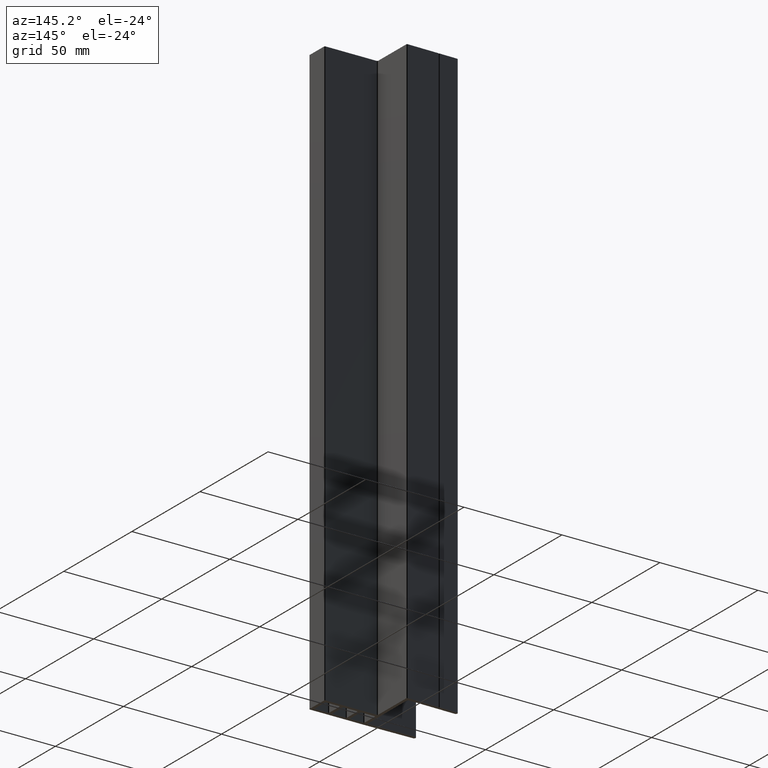
[diagram: clean part render]
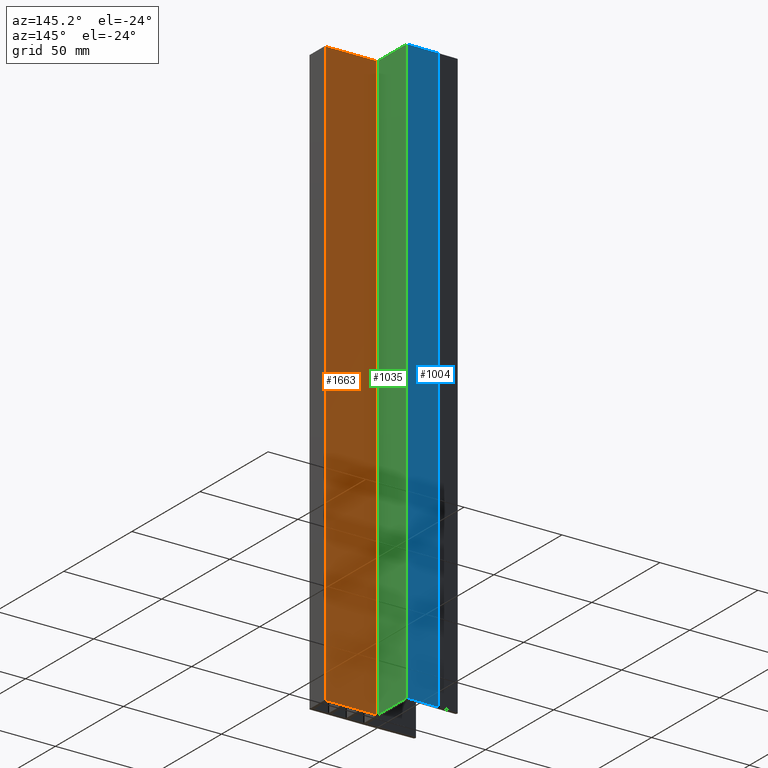
[diagram: same view with three faces highlighted in distinct colors, each labeled with its STEP entity id]
A machine part, auxiliary view with three faces highlighted in distinct colors.
Their STEP definitions:

[orange] entity #1663 — the highlighted planar face has unit normal (0, -1, 0).
#368 = EDGE_CURVE ( 'NONE', #1259, #1438, #1118, .T. ) ;
#387 = EDGE_CURVE ( 'NONE', #1009, #1438, #1652, .T. ) ;
#436 = LINE ( 'NONE', #1052, #1475 ) ;
#487 = VECTOR ( 'NONE', #1154, 1000.000000000000000 ) ;
#623 = EDGE_LOOP ( 'NONE', ( #1577, #1032, #1169, #1190 ) ) ;
#792 = CARTESIAN_POINT ( 'NONE',  ( 28.10000000000000100, -5.000000000000000000, 150.0000000000000000 ) ) ;
#855 = FACE_OUTER_BOUND ( 'NONE', #623, .T. ) ;
#920 = DIRECTION ( 'NONE',  ( 1.000000000000000000, 1.000802005371235000E-016, 0.0000000000000000000 ) ) ;
#922 = DIRECTION ( 'NONE',  ( 1.000802005371235000E-016, -1.000000000000000000, 0.0000000000000000000 ) ) ;
#925 = PLANE ( 'NONE',  #1691 ) ;
#940 = CARTESIAN_POINT ( 'NONE',  ( 28.10000000000000100, -5.000000000000000000, 150.0000000000000000 ) ) ;
#1009 = VERTEX_POINT ( 'NONE', #1794 ) ;
#1031 = DIRECTION ( 'NONE',  ( -0.0000000000000000000, -0.0000000000000000000, -1.000000000000000000 ) ) ;
#1032 = ORIENTED_EDGE ( 'NONE', *, *, #368, .F. ) ;
#1052 = CARTESIAN_POINT ( 'NONE',  ( 28.10000000000000100, -5.000000000000000000, 150.0000000000000000 ) ) ;
#1118 = LINE ( 'NONE', #1804, #1428 ) ;
#1154 = DIRECTION ( 'NONE',  ( -1.000000000000000000, -1.000802005371235100E-016, 0.0000000000000000000 ) ) ;
#1160 = CARTESIAN_POINT ( 'NONE',  ( 28.10000000000000100, -5.000000000000000000, 150.0000000000000000 ) ) ;
#1169 = ORIENTED_EDGE ( 'NONE', *, *, #1452, .F. ) ;
#1190 = ORIENTED_EDGE ( 'NONE', *, *, #1567, .T. ) ;
#1204 = CARTESIAN_POINT ( 'NONE',  ( 2.100000000000000100, -5.000000000000002700, -150.0000000000000000 ) ) ;
#1212 = LINE ( 'NONE', #1160, #487 ) ;
#1259 = VERTEX_POINT ( 'NONE', #1392 ) ;
#1392 = CARTESIAN_POINT ( 'NONE',  ( 2.100000000000000100, -5.000000000000002700, 150.0000000000000000 ) ) ;
#1428 = VECTOR ( 'NONE', #1828, 1000.000000000000000 ) ;
#1438 = VERTEX_POINT ( 'NONE', #1204 ) ;
#1452 = EDGE_CURVE ( 'NONE', #1806, #1259, #1212, .T. ) ;
#1475 = VECTOR ( 'NONE', #1031, 1000.000000000000000 ) ;
#1567 = EDGE_CURVE ( 'NONE', #1806, #1009, #436, .T. ) ;
#1577 = ORIENTED_EDGE ( 'NONE', *, *, #387, .T. ) ;
#1606 = CARTESIAN_POINT ( 'NONE',  ( 28.10000000000000100, -5.000000000000000000, -150.0000000000000000 ) ) ;
#1612 = DIRECTION ( 'NONE',  ( -1.000000000000000000, -1.000802005371235100E-016, 0.0000000000000000000 ) ) ;
#1652 = LINE ( 'NONE', #1606, #1696 ) ;
#1663 = ADVANCED_FACE ( 'NONE', ( #855 ), #925, .F. ) ;
#1691 = AXIS2_PLACEMENT_3D ( 'NONE', #940, #922, #920 ) ;
#1696 = VECTOR ( 'NONE', #1612, 1000.000000000000000 ) ;
#1794 = CARTESIAN_POINT ( 'NONE',  ( 28.10000000000000100, -5.000000000000000000, -150.0000000000000000 ) ) ;
#1804 = CARTESIAN_POINT ( 'NONE',  ( 2.100000000000000100, -5.000000000000002700, 150.0000000000000000 ) ) ;
#1806 = VERTEX_POINT ( 'NONE', #792 ) ;
#1828 = DIRECTION ( 'NONE',  ( -0.0000000000000000000, -0.0000000000000000000, -1.000000000000000000 ) ) ;

[blue] entity #1004 — the highlighted planar face has unit normal (0.016, -0.9999, 0).
#21 = LINE ( 'NONE', #1891, #999 ) ;
#39 = LINE ( 'NONE', #1571, #1036 ) ;
#105 = VERTEX_POINT ( 'NONE', #116 ) ;
#116 = CARTESIAN_POINT ( 'NONE',  ( -14.78087924239068400, 16.26391553212179300, -150.0000000000000000 ) ) ;
#156 = VECTOR ( 'NONE', #1405, 1000.000000000000100 ) ;
#209 = FACE_OUTER_BOUND ( 'NONE', #1777, .T. ) ;
#256 = CARTESIAN_POINT ( 'NONE',  ( 1.092001023803433900, 16.51788161638096900, 150.0000000000000000 ) ) ;
#279 = LINE ( 'NONE', #1753, #1368 ) ;
#291 = VERTEX_POINT ( 'NONE', #1188 ) ;
#417 = EDGE_CURVE ( 'NONE', #1505, #105, #1639, .T. ) ;
#540 = ORIENTED_EDGE ( 'NONE', *, *, #1130, .T. ) ;
#620 = ORIENTED_EDGE ( 'NONE', *, *, #417, .T. ) ;
#771 = ORIENTED_EDGE ( 'NONE', *, *, #884, .F. ) ;
#800 = AXIS2_PLACEMENT_3D ( 'NONE', #1780, #1767, #1765 ) ;
#803 = VERTEX_POINT ( 'NONE', #256 ) ;
#884 = EDGE_CURVE ( 'NONE', #803, #291, #21, .T. ) ;
#999 = VECTOR ( 'NONE', #1892, 1000.000000000000100 ) ;
#1004 = ADVANCED_FACE ( 'NONE', ( #209 ), #1787, .F. ) ;
#1011 = EDGE_CURVE ( 'NONE', #803, #1505, #279, .T. ) ;
#1036 = VECTOR ( 'NONE', #1580, 1000.000000000000000 ) ;
#1130 = EDGE_CURVE ( 'NONE', #105, #291, #39, .T. ) ;
#1142 = CARTESIAN_POINT ( 'NONE',  ( 1.092001023803433900, 16.51788161638096900, -150.0000000000000000 ) ) ;
#1188 = CARTESIAN_POINT ( 'NONE',  ( -14.78087924239068100, 16.26391553212179300, 150.0000000000000000 ) ) ;
#1368 = VECTOR ( 'NONE', #1761, 1000.000000000000000 ) ;
#1405 = DIRECTION ( 'NONE',  ( -0.9998720245707581900, -0.01599795239313673100, 0.0000000000000000000 ) ) ;
#1421 = CARTESIAN_POINT ( 'NONE',  ( 1.092001023803433900, 16.51788161638096900, -150.0000000000000000 ) ) ;
#1440 = ORIENTED_EDGE ( 'NONE', *, *, #1011, .T. ) ;
#1505 = VERTEX_POINT ( 'NONE', #1142 ) ;
#1571 = CARTESIAN_POINT ( 'NONE',  ( -14.78087924239068100, 16.26391553212179300, -150.0009999999999800 ) ) ;
#1580 = DIRECTION ( 'NONE',  ( -0.0000000000000000000, -0.0000000000000000000, 1.000000000000000000 ) ) ;
#1639 = LINE ( 'NONE', #1421, #156 ) ;
#1753 = CARTESIAN_POINT ( 'NONE',  ( 1.092001023803433900, 16.51788161638096900, 150.0000000000000000 ) ) ;
#1761 = DIRECTION ( 'NONE',  ( -0.0000000000000000000, -0.0000000000000000000, -1.000000000000000000 ) ) ;
#1765 = DIRECTION ( 'NONE',  ( 0.9998720245707583000, 0.01599795239313673400, 0.0000000000000000000 ) ) ;
#1767 = DIRECTION ( 'NONE',  ( 0.01599795239313673400, -0.9998720245707583000, 0.0000000000000000000 ) ) ;
#1777 = EDGE_LOOP ( 'NONE', ( #620, #540, #771, #1440 ) ) ;
#1780 = CARTESIAN_POINT ( 'NONE',  ( 1.092001023803433900, 16.51788161638096900, 150.0000000000000000 ) ) ;
#1787 = PLANE ( 'NONE',  #800 ) ;
#1891 = CARTESIAN_POINT ( 'NONE',  ( 1.092001023803433900, 16.51788161638096900, 150.0000000000000000 ) ) ;
#1892 = DIRECTION ( 'NONE',  ( -0.9998720245707581900, -0.01599795239313673100, 0.0000000000000000000 ) ) ;

[green] entity #1035 — the highlighted planar face has unit normal (-1, 0, 0).
#60 = VECTOR ( 'NONE', #879, 1000.000000000000000 ) ;
#78 = EDGE_CURVE ( 'NONE', #1065, #654, #1045, .T. ) ;
#267 = VECTOR ( 'NONE', #872, 1000.000000000000000 ) ;
#337 = CARTESIAN_POINT ( 'NONE',  ( 1.599999999999999000, 16.01794560409558700, 150.0000000000000000 ) ) ;
#513 = CARTESIAN_POINT ( 'NONE',  ( 1.599999999999999000, 16.01794560409558700, -150.0000000000000000 ) ) ;
#516 = FACE_OUTER_BOUND ( 'NONE', #938, .T. ) ;
#604 = VERTEX_POINT ( 'NONE', #513 ) ;
#654 = VERTEX_POINT ( 'NONE', #337 ) ;
#751 = LINE ( 'NONE', #1450, #1221 ) ;
#770 = ORIENTED_EDGE ( 'NONE', *, *, #958, .F. ) ;
#872 = DIRECTION ( 'NONE',  ( 0.0000000000000000000, 1.000000000000000000, 0.0000000000000000000 ) ) ;
#879 = DIRECTION ( 'NONE',  ( 0.0000000000000000000, 1.000000000000000000, 0.0000000000000000000 ) ) ;
#903 = CARTESIAN_POINT ( 'NONE',  ( 1.600000000000000100, -4.500000000000003600, -150.0000000000000000 ) ) ;
#938 = EDGE_LOOP ( 'NONE', ( #1846, #770, #1018, #1397 ) ) ;
#958 = EDGE_CURVE ( 'NONE', #654, #604, #1120, .T. ) ;
#1018 = ORIENTED_EDGE ( 'NONE', *, *, #78, .F. ) ;
#1035 = ADVANCED_FACE ( 'NONE', ( #516 ), #1695, .F. ) ;
#1045 = LINE ( 'NONE', #1249, #267 ) ;
#1065 = VERTEX_POINT ( 'NONE', #1651 ) ;
#1120 = LINE ( 'NONE', #1829, #1181 ) ;
#1181 = VECTOR ( 'NONE', #1842, 1000.000000000000000 ) ;
#1196 = EDGE_CURVE ( 'NONE', #1065, #1210, #751, .T. ) ;
#1210 = VERTEX_POINT ( 'NONE', #1477 ) ;
#1221 = VECTOR ( 'NONE', #1439, 1000.000000000000000 ) ;
#1249 = CARTESIAN_POINT ( 'NONE',  ( 1.600000000000000100, -4.500000000000003600, 150.0000000000000000 ) ) ;
#1264 = LINE ( 'NONE', #903, #60 ) ;
#1397 = ORIENTED_EDGE ( 'NONE', *, *, #1196, .T. ) ;
#1439 = DIRECTION ( 'NONE',  ( -0.0000000000000000000, -0.0000000000000000000, -1.000000000000000000 ) ) ;
#1450 = CARTESIAN_POINT ( 'NONE',  ( 1.600000000000000100, -4.500000000000003600, 150.0000000000000000 ) ) ;
#1477 = CARTESIAN_POINT ( 'NONE',  ( 1.600000000000000100, -4.500000000000003600, -150.0000000000000000 ) ) ;
#1651 = CARTESIAN_POINT ( 'NONE',  ( 1.600000000000000100, -4.500000000000003600, 150.0000000000000000 ) ) ;
#1685 = EDGE_CURVE ( 'NONE', #1210, #604, #1264, .T. ) ;
#1693 = DIRECTION ( 'NONE',  ( 0.0000000000000000000, 0.0000000000000000000, 1.000000000000000000 ) ) ;
#1695 = PLANE ( 'NONE',  #1887 ) ;
#1709 = CARTESIAN_POINT ( 'NONE',  ( 1.600000000000000100, -4.500000000000003600, 150.0000000000000000 ) ) ;
#1714 = DIRECTION ( 'NONE',  ( -1.000000000000000000, 0.0000000000000000000, 0.0000000000000000000 ) ) ;
#1829 = CARTESIAN_POINT ( 'NONE',  ( 1.599999999999999000, 16.01794560409558700, 150.0000000000000000 ) ) ;
#1842 = DIRECTION ( 'NONE',  ( -0.0000000000000000000, -0.0000000000000000000, -1.000000000000000000 ) ) ;
#1846 = ORIENTED_EDGE ( 'NONE', *, *, #1685, .T. ) ;
#1887 = AXIS2_PLACEMENT_3D ( 'NONE', #1709, #1714, #1693 ) ;